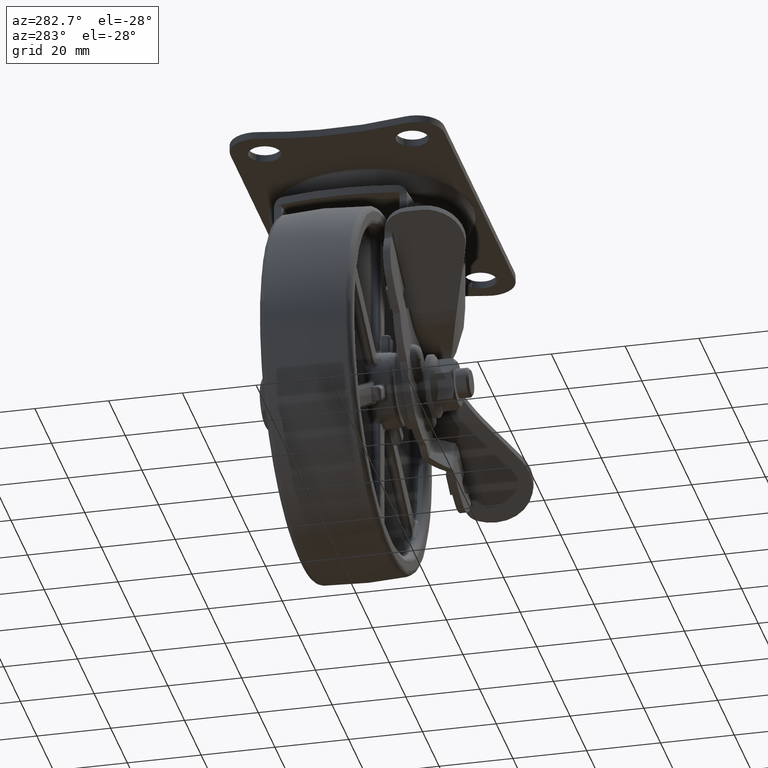
[diagram: clean part render]
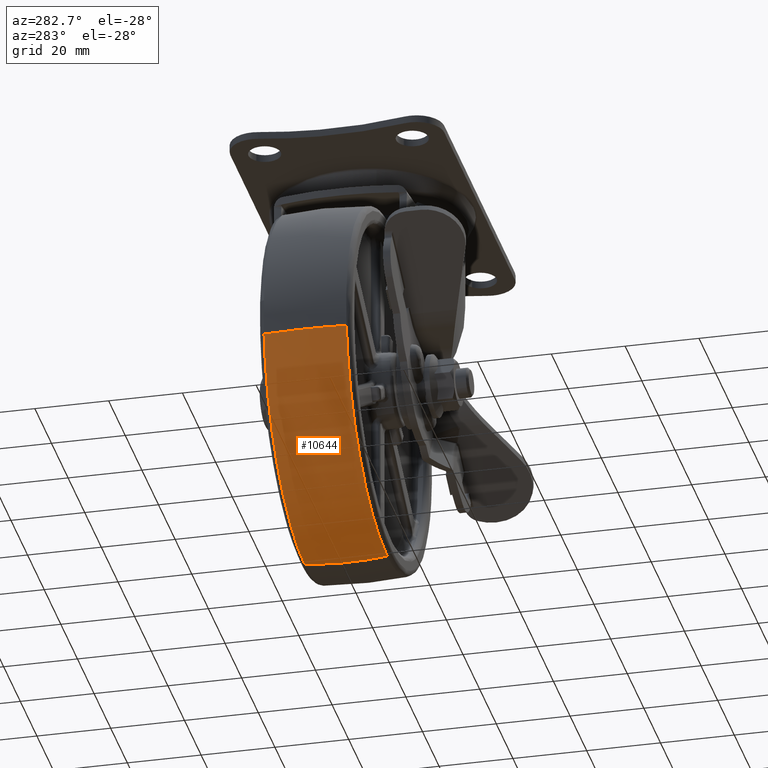
[diagram: same view with one face highlighted and labeled with its STEP entity id]
A machine part, auxiliary view. The second image highlights one B-rep face of the part: STEP entity #10644.
In plain terms, the highlighted face is a freeform B-spline surface patch.
Its self-contained STEP definition (entity closure, byte-faithful):
#9494=CARTESIAN_POINT('',(-32.0,11.167484830604160,-119.374480036664590));
#9495=VERTEX_POINT('',#9494);
#9512=CARTESIAN_POINT('',(-81.044247313738538,11.167491407916470,-75.700965824303069));
#9513=VERTEX_POINT('',#9512);
#9514=CARTESIAN_POINT('',(-32.0,11.167484830604160,-119.374480036664590));
#9515=CARTESIAN_POINT('',(-34.151562146857181,11.167484991529980,-119.374557996739100));
#9516=CARTESIAN_POINT('',(-38.548211891666710,11.167485339563180,-119.086662295267300));
#9517=CARTESIAN_POINT('',(-44.890345887027920,11.167485899095830,-117.808133782953600));
#9518=CARTESIAN_POINT('',(-51.275488074621180,11.167486522201020,-115.623450961163400));
#9519=CARTESIAN_POINT('',(-56.722276485369463,11.167487112104521,-112.883495136506300));
#9520=CARTESIAN_POINT('',(-61.864385140867228,11.167487725197480,-109.453241384254800));
#9521=CARTESIAN_POINT('',(-66.374090392275946,11.167488316516030,-105.639713297374500));
#9522=CARTESIAN_POINT('',(-71.231485320522751,11.167489035495700,-100.299998228715490));
#9523=CARTESIAN_POINT('',(-75.222312640273856,11.167489735638220,-94.269956441652269));
#9524=CARTESIAN_POINT('',(-78.043116676396565,11.167490355062730,-88.137859940812703));
#9525=CARTESIAN_POINT('',(-79.985407551006887,11.167490897828920,-82.170175056563721));
#9526=CARTESIAN_POINT('',(-80.763558647372804,11.167491226001120,-78.116925897910534));
#9527=CARTESIAN_POINT('',(-81.044247313738538,11.167491407916470,-75.700965824303069));
#9528=B_SPLINE_CURVE_WITH_KNOTS('',3,(#9514,#9515,#9516,#9517,#9518,#9519,#9520,#9521,#9522,#9523,#9524,#9525,#9526,#9527),.UNSPECIFIED.,.F.,.U.,(4,1,1,1,1,1,1,1,1,1,1,4),(0.000000122667160,6.454684759554752,13.190018702984659,19.364111647181250,26.660771312464789,31.431602975262411,37.886216166577093,44.340942934900852,53.040807828872062,59.495520480242646,64.547020878055662,71.843637418545910),.UNSPECIFIED.);
#9529=EDGE_CURVE('',#9495,#9513,#9528,.T.);
#9708=CARTESIAN_POINT('',(-32.0,-11.167488677243210,-119.374479604382800));
#9709=VERTEX_POINT('',#9708);
#9826=CARTESIAN_POINT('',(-81.044249517506259,-11.167471308522110,-75.700966427871975));
#9827=VERTEX_POINT('',#9826);
#9846=CARTESIAN_POINT('',(-32.0,-11.167488677243210,-119.374479604382800));
#9847=CARTESIAN_POINT('',(-35.087049554884338,-11.167488067560360,-119.374837722846810));
#9848=CARTESIAN_POINT('',(-41.073881326890977,-11.167486785910700,-118.811145678573990));
#9849=CARTESIAN_POINT('',(-49.206723567276150,-11.167484774929610,-116.510792133406400));
#9850=CARTESIAN_POINT('',(-55.493701148495212,-11.167483015649649,-113.568614548782900));
#9851=CARTESIAN_POINT('',(-60.889974978537488,-11.167481354917831,-110.186488389138500));
#9852=CARTESIAN_POINT('',(-65.851863505265555,-11.167479670252760,-106.180486013336510));
#9853=CARTESIAN_POINT('',(-70.629929033260112,-11.167477818274600,-101.016812474432000));
#9854=CARTESIAN_POINT('',(-74.626956456828054,-11.167476011112230,-95.230834155019252));
#9855=CARTESIAN_POINT('',(-77.656585551346467,-11.167474351301220,-89.196271208086728));
#9856=CARTESIAN_POINT('',(-79.897036465527833,-11.167472753986599,-82.630787935767174));
#9857=CARTESIAN_POINT('',(-80.763547217686664,-11.167471788902610,-78.116923959485490));
#9858=CARTESIAN_POINT('',(-81.044249517506259,-11.167471308522110,-75.700966427871975));
#9859=B_SPLINE_CURVE_WITH_KNOTS('',3,(#9846,#9847,#9848,#9849,#9850,#9851,#9852,#9853,#9854,#9855,#9856,#9857,#9858),.UNSPECIFIED.,.F.,.U.,(4,1,1,1,1,1,1,1,1,1,4),(0.000000122441094,9.261084547878831,17.960910226005112,25.257569525832981,30.028407830127371,37.044286748312608,44.340943403128662,51.076334546985088,58.092321304114087,64.547021559729330,71.843638177300633),.UNSPECIFIED.);
#9860=EDGE_CURVE('',#9709,#9827,#9859,.T.);
#10592=CARTESIAN_POINT('',(-81.044247313738538,11.167491407916470,-75.700965824303069));
#10593=CARTESIAN_POINT('',(-81.872436668810991,3.753624073847197,-75.797236074676491));
#10594=CARTESIAN_POINT('',(-81.872929675857023,-3.753606089992631,-75.797293499419396));
#10595=CARTESIAN_POINT('',(-81.044249517506259,-11.167471308522110,-75.700966427871975));
#10596=B_SPLINE_CURVE_WITH_KNOTS('',3,(#10592,#10593,#10594,#10595),.UNSPECIFIED.,.F.,.U.,(4,4),(1.916714E-009,22.381660810785849),.UNSPECIFIED.);
#10597=EDGE_CURVE('',#9513,#9827,#10596,.T.);
#10603=CARTESIAN_POINT('',(-32.0,11.167484830604160,-119.374480036664590));
#10604=CARTESIAN_POINT('',(-31.999999999999929,3.753617508257488,-120.208737189398090));
#10605=CARTESIAN_POINT('',(-32.000000000000099,-3.753618778012686,-120.208233780654990));
#10606=CARTESIAN_POINT('',(-32.0,-11.167488677243210,-119.374479604382800));
#10607=B_SPLINE_CURVE_WITH_KNOTS('',3,(#10603,#10604,#10605,#10606),.UNSPECIFIED.,.F.,.U.,(4,4),(1.918540E-009,22.381671670139351),.UNSPECIFIED.);
#10608=EDGE_CURVE('',#9495,#9709,#10607,.T.);
#10615=CARTESIAN_POINT('',(-32.0,12.293359890480257,-119.241489824584600));
#10616=CARTESIAN_POINT('',(-32.0,6.170080288650481,-120.0));
#10617=CARTESIAN_POINT('',(-32.0,-3.673819E-015,-120.0));
#10618=CARTESIAN_POINT('',(-32.0,-6.170077209061226,-120.000000000000030));
#10619=CARTESIAN_POINT('',(-32.000000000000007,-12.293353801201517,-119.241490578882890));
#10620=CARTESIAN_POINT('',(-75.849138025146985,12.293359890480255,-119.241489824584620));
#10621=CARTESIAN_POINT('',(-76.524585041347208,6.170080288650483,-120.0));
#10622=CARTESIAN_POINT('',(-76.524585041347194,-3.673819E-015,-120.0));
#10623=CARTESIAN_POINT('',(-76.524585041347180,-6.170077209061225,-119.999999999999990));
#10624=CARTESIAN_POINT('',(-75.849138696843269,-12.293353801201512,-119.241490578882820));
#10625=CARTESIAN_POINT('',(-80.912144953877089,12.293359890480252,-75.685630673512620));
#10626=CARTESIAN_POINT('',(-81.665581939254110,6.170080288650482,-75.773211466353715));
#10627=CARTESIAN_POINT('',(-81.665581939254096,-3.673819E-015,-75.773211466353700));
#10628=CARTESIAN_POINT('',(-81.665581939254096,-6.170077209061224,-75.773211466353700));
#10629=CARTESIAN_POINT('',(-80.912145703130250,-12.293353801201517,-75.685630760607069));
#10637=(BOUNDED_SURFACE()B_SPLINE_SURFACE(2,2,((#10615,#10620,#10625),(#10616,#10621,#10626),(#10617,#10622,#10627),(#10618,#10623,#10628),(#10619,#10624,#10629)),.UNSPECIFIED.,.F.,.F.,.U.)B_SPLINE_SURFACE_WITH_KNOTS((3,2,3),(3,3),(0.0,12.496602079433609,24.993198023047640),(0.0,76.131697817177823),.UNSPECIFIED.)GEOMETRIC_REPRESENTATION_ITEM()RATIONAL_B_SPLINE_SURFACE(((0.971421082618004,0.709660246723667,0.929539348874910),(0.983736203836735,0.718656913688072,0.941323517412949),(1.0,0.730538238691624,0.956886118190660),(0.983736211822243,0.718656919521792,0.941323525054171),(0.971421094711430,0.709660255558377,0.929539360446942)))REPRESENTATION_ITEM('')SURFACE());
#10638=ORIENTED_EDGE('',*,*,#9529,.F.);
#10639=ORIENTED_EDGE('',*,*,#10608,.T.);
#10640=ORIENTED_EDGE('',*,*,#9860,.T.);
#10641=ORIENTED_EDGE('',*,*,#10597,.F.);
#10642=EDGE_LOOP('',(#10638,#10639,#10640,#10641));
#10643=FACE_OUTER_BOUND('',#10642,.T.);
#10644=ADVANCED_FACE('',(#10643),#10637,.T.);